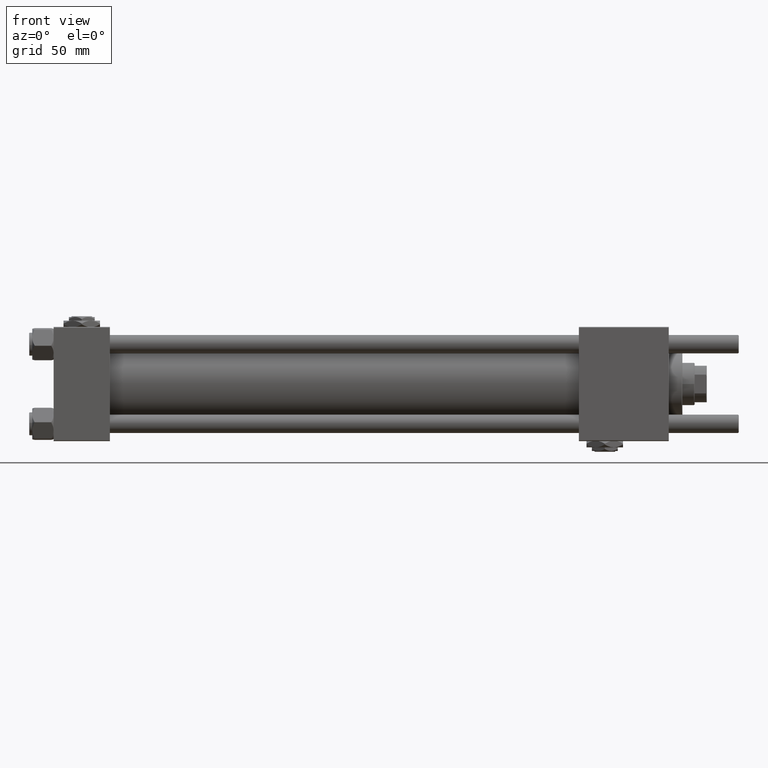
[diagram: clean part render]
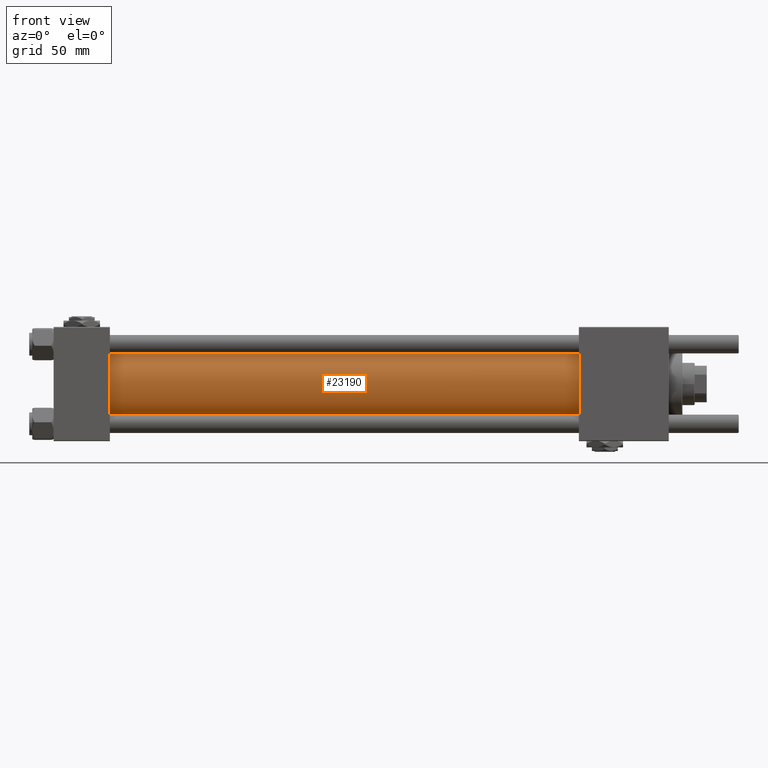
[diagram: same view with one face highlighted and labeled with its STEP entity id]
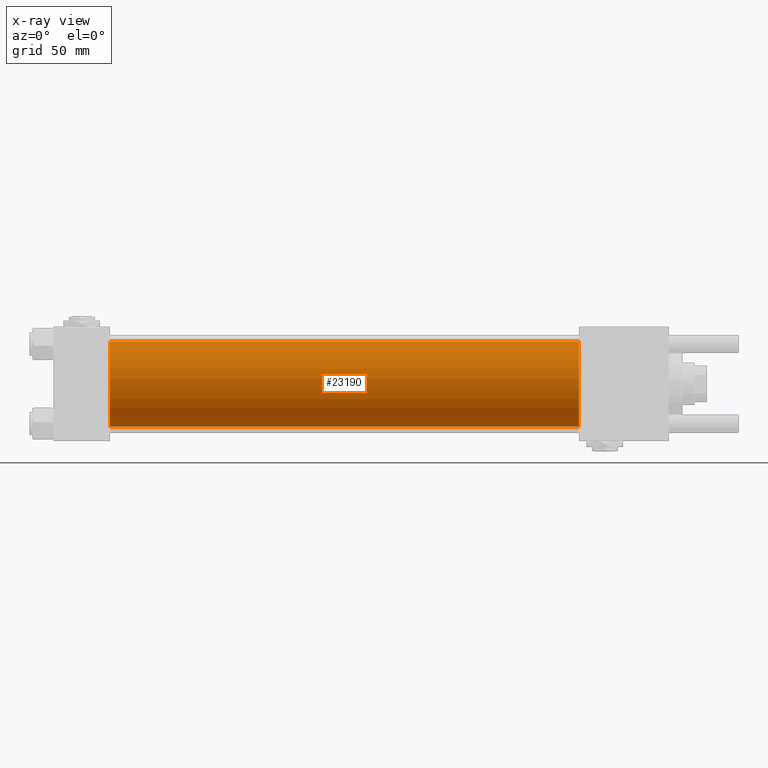
[diagram: x-ray of the same camera — body ghosted, the highlighted face saturated]
A machine part, front view. The second image highlights one B-rep face of the part: STEP entity #23190.
The next image is the same camera in x-ray: the body ghosted, the highlighted face saturated — about 0% of this face is hidden behind the body in this view.
In plain terms, the highlighted cylindrical surface (partial cylindrical patch) has radius 28 mm, axis along (-1, -0, -0).
Its self-contained STEP definition (entity closure, byte-faithful):
#3604 = DIRECTION ( 'NONE',  ( 0.000000000000000000, 0.000000000000000000, 1.000000000000000000 ) ) ;
#8629 = DIRECTION ( 'NONE',  ( 1.000000000000000000, -0.000000000000000000, 0.000000000000000000 ) ) ;
#11100 = FACE_OUTER_BOUND ( 'NONE', #44844, .T. ) ;
#13202 = CARTESIAN_POINT ( 'NONE',  ( 345.0000000000000000, -2.602085213965210642E-15, 28.00000000000000000 ) ) ;
#14096 = CARTESIAN_POINT ( 'NONE',  ( 36.99999999999997868, -2.602085213965210642E-15, 28.00000000000000000 ) ) ;
#15433 = AXIS2_PLACEMENT_3D ( 'NONE', #16536, #39101, #29586 ) ;
#15931 = VECTOR ( 'NONE', #31112, 1000.000000000000000 ) ;
#16362 = ORIENTED_EDGE ( 'NONE', *, *, #19961, .T. ) ;
#16536 = CARTESIAN_POINT ( 'NONE',  ( 345.0000000000000000, -2.602085213965210642E-15, 0.000000000000000000 ) ) ;
#16719 = DIRECTION ( 'NONE',  ( 0.000000000000000000, 0.000000000000000000, 1.000000000000000000 ) ) ;
#18751 = VERTEX_POINT ( 'NONE', #49236 ) ;
#19320 = ORIENTED_EDGE ( 'NONE', *, *, #47685, .F. ) ;
#19961 = EDGE_CURVE ( 'NONE', #44703, #35639, #27440, .T. ) ;
#19993 = DIRECTION ( 'NONE',  ( -1.000000000000000000, -0.000000000000000000, -0.000000000000000000 ) ) ;
#23190 = ADVANCED_FACE ( 'NONE', ( #11100 ), #43187, .T. ) ;
#25572 = ORIENTED_EDGE ( 'NONE', *, *, #47356, .T. ) ;
#26721 = CARTESIAN_POINT ( 'NONE',  ( 36.99999999999997868, -2.602085213965210642E-15, 0.000000000000000000 ) ) ;
#27440 = LINE ( 'NONE', #13202, #37939 ) ;
#28946 = VERTEX_POINT ( 'NONE', #36571 ) ;
#29586 = DIRECTION ( 'NONE',  ( 0.000000000000000000, 0.000000000000000000, -1.000000000000000000 ) ) ;
#30221 = CARTESIAN_POINT ( 'NONE',  ( 345.0000000000000000, -2.602085213965210642E-15, 28.00000000000000000 ) ) ;
#31112 = DIRECTION ( 'NONE',  ( -1.000000000000000000, -0.000000000000000000, -0.000000000000000000 ) ) ;
#31214 = EDGE_CURVE ( 'NONE', #44703, #18751, #36276, .T. ) ;
#35639 = VERTEX_POINT ( 'NONE', #14096 ) ;
#36276 = CIRCLE ( 'NONE', #15433, 28.00000000000000000 ) ;
#36571 = CARTESIAN_POINT ( 'NONE',  ( 36.99999999999997868, 8.269258236473784371E-16, -28.00000000000000000 ) ) ;
#37939 = VECTOR ( 'NONE', #46195, 1000.000000000000000 ) ;
#39101 = DIRECTION ( 'NONE',  ( 1.000000000000000000, 0.000000000000000000, 0.000000000000000000 ) ) ;
#39484 = CIRCLE ( 'NONE', #50938, 28.00000000000000000 ) ;
#39733 = CARTESIAN_POINT ( 'NONE',  ( 345.0000000000000000, 8.269258236473784371E-16, -28.00000000000000000 ) ) ;
#40024 = LINE ( 'NONE', #39733, #15931 ) ;
#43187 = CYLINDRICAL_SURFACE ( 'NONE', #48522, 28.00000000000000000 ) ;
#43757 = CARTESIAN_POINT ( 'NONE',  ( 345.0000000000000000, -2.602085213965210642E-15, 0.000000000000000000 ) ) ;
#44703 = VERTEX_POINT ( 'NONE', #30221 ) ;
#44844 = EDGE_LOOP ( 'NONE', ( #19320, #45672, #16362, #25572 ) ) ;
#45672 = ORIENTED_EDGE ( 'NONE', *, *, #31214, .F. ) ;
#46195 = DIRECTION ( 'NONE',  ( -1.000000000000000000, -0.000000000000000000, -0.000000000000000000 ) ) ;
#47356 = EDGE_CURVE ( 'NONE', #35639, #28946, #39484, .T. ) ;
#47685 = EDGE_CURVE ( 'NONE', #18751, #28946, #40024, .T. ) ;
#48522 = AXIS2_PLACEMENT_3D ( 'NONE', #43757, #19993, #16719 ) ;
#49236 = CARTESIAN_POINT ( 'NONE',  ( 345.0000000000000000, 8.269258236473784371E-16, -28.00000000000000000 ) ) ;
#50938 = AXIS2_PLACEMENT_3D ( 'NONE', #26721, #8629, #3604 ) ;